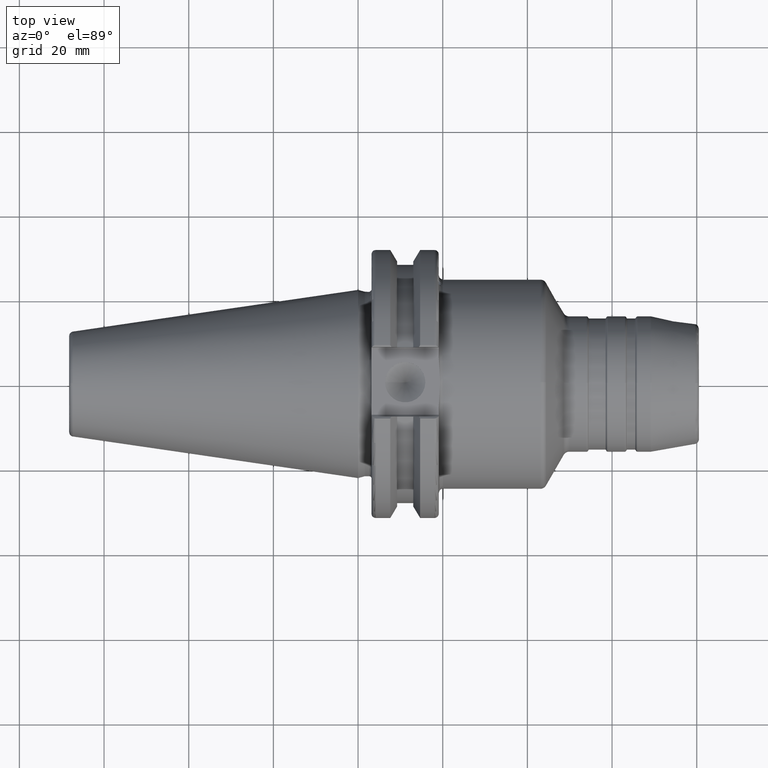
[diagram: clean part render]
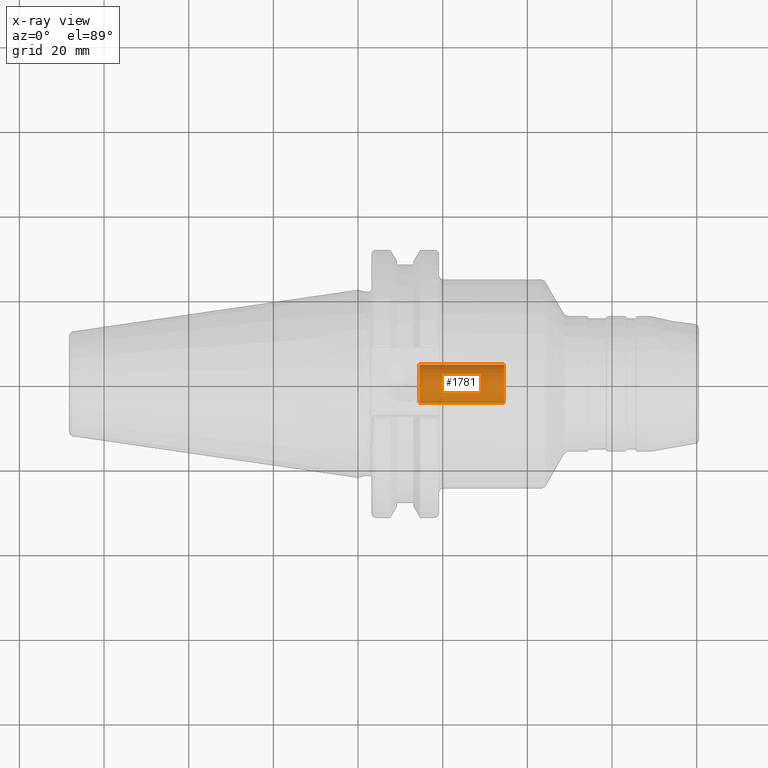
[diagram: x-ray — body ghosted, one internal face saturated and labeled with its STEP entity id]
A machine part, top view, then the same camera in x-ray: the body is ghosted and one INTERNAL B-rep face — a face not visible from any outside direction — is saturated and labeled: STEP entity #1781.
In plain terms, the highlighted cylindrical surface (bore or boss wall) has radius 4.55 mm, axis along (-1, 0, 0).
Its self-contained STEP definition (entity closure, byte-faithful):
#169=FACE_OUTER_BOUND('',#276,.T.);
#276=EDGE_LOOP('',(#1184,#1185,#1186,#1187));
#397=LINE('',#2771,#491);
#491=VECTOR('',#2176,4.55);
#587=CIRCLE('',#1914,4.55);
#588=CIRCLE('',#1915,4.55);
#712=VERTEX_POINT('',#2768);
#713=VERTEX_POINT('',#2770);
#899=EDGE_CURVE('',#712,#712,#587,.T.);
#900=EDGE_CURVE('',#712,#713,#397,.T.);
#901=EDGE_CURVE('',#713,#713,#588,.T.);
#1184=ORIENTED_EDGE('',*,*,#899,.F.);
#1185=ORIENTED_EDGE('',*,*,#900,.T.);
#1186=ORIENTED_EDGE('',*,*,#901,.T.);
#1187=ORIENTED_EDGE('',*,*,#900,.F.);
#1745=CYLINDRICAL_SURFACE('',#1913,4.55);
#1781=ADVANCED_FACE('',(#169),#1745,.F.);
#1913=AXIS2_PLACEMENT_3D('',#2767,#2172,#2173);
#1914=AXIS2_PLACEMENT_3D('',#2769,#2174,#2175);
#1915=AXIS2_PLACEMENT_3D('',#2772,#2177,#2178);
#2172=DIRECTION('center_axis',(-1.,0.,0.));
#2173=DIRECTION('ref_axis',(0.,1.,0.));
#2174=DIRECTION('center_axis',(-1.,0.,0.));
#2175=DIRECTION('ref_axis',(0.,1.,0.));
#2176=DIRECTION('',(-1.,0.,0.));
#2177=DIRECTION('center_axis',(-1.,0.,0.));
#2178=DIRECTION('ref_axis',(0.,0.,1.));
#2767=CARTESIAN_POINT('Origin',(24.5,0.,0.));
#2768=CARTESIAN_POINT('',(34.5,-4.55,5.57214293612046E-16));
#2769=CARTESIAN_POINT('Origin',(34.5,0.,0.));
#2770=CARTESIAN_POINT('',(14.5,-4.55,5.57214293612046E-16));
#2771=CARTESIAN_POINT('',(24.5,-4.55,5.57214293612046E-16));
#2772=CARTESIAN_POINT('Origin',(14.5,0.,0.));